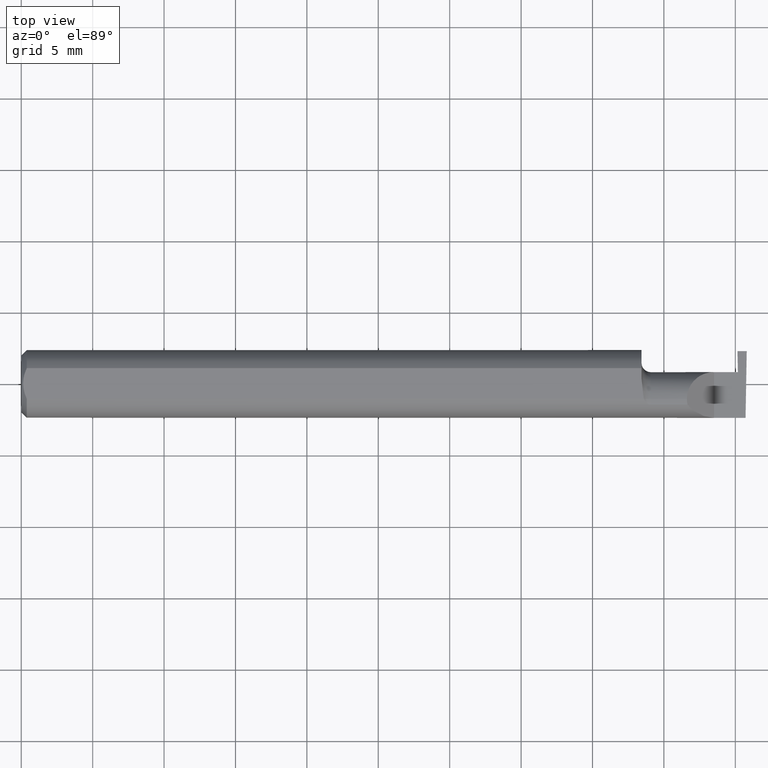
[diagram: clean part render]
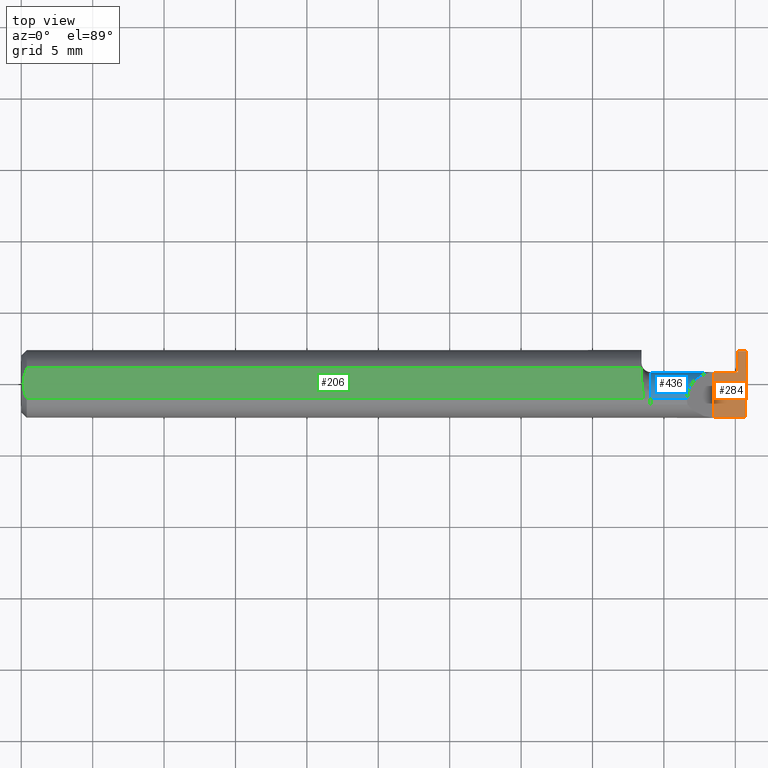
[diagram: same view with three faces highlighted in distinct colors, each labeled with its STEP entity id]
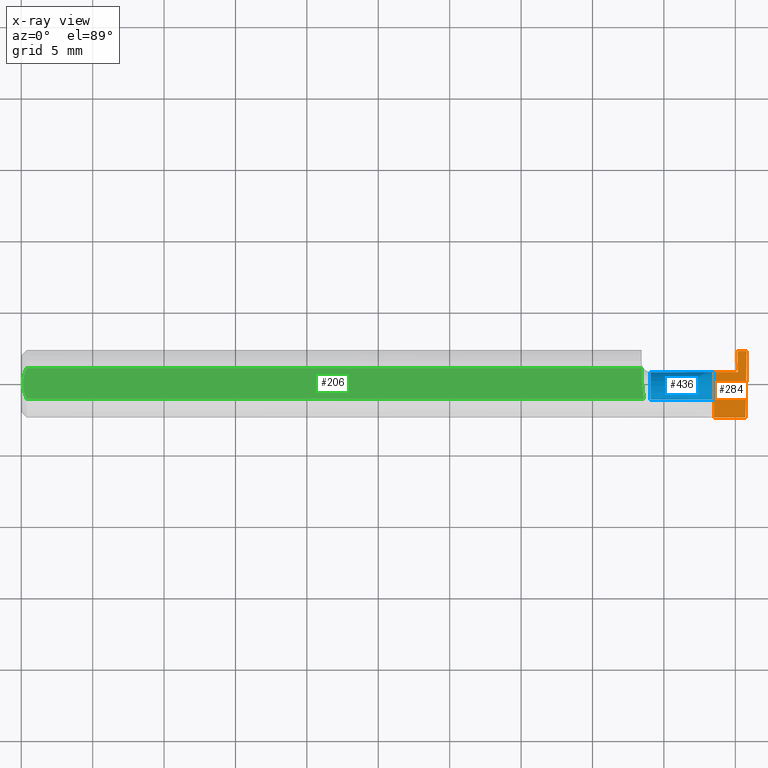
[diagram: x-ray of the same camera — body ghosted, the three highlighted faces saturated]
A machine part, top view with three faces highlighted in distinct colors.
The next image is the same camera in x-ray (body ghosted, the three faces saturated) — at least one of them is partly hidden behind the body in this view.
Their STEP definitions:

[orange] entity #284 — the highlighted planar face has unit normal (-0, 0, -1).
#10 = DIRECTION ( 'NONE',  ( -1.000000000000000000, -7.209802597311143795E-16, 1.224646799147358877E-16 ) ) ;
#12 = FACE_OUTER_BOUND ( 'NONE', #373, .T. ) ;
#66 = LINE ( 'NONE', #476, #742 ) ;
#67 = VERTEX_POINT ( 'NONE', #548 ) ;
#74 = AXIS2_PLACEMENT_3D ( 'NONE', #443, #676, #381 ) ;
#79 = CARTESIAN_POINT ( 'NONE',  ( 2.000000000000000000, 0.03240000000000002600, 1.169020725542458377E-32 ) ) ;
#100 = VERTEX_POINT ( 'NONE', #594 ) ;
#105 = EDGE_CURVE ( 'NONE', #100, #252, #66, .T. ) ;
#112 = LINE ( 'NONE', #365, #406 ) ;
#142 = DIRECTION ( 'NONE',  ( -1.000000000000000000, -0.000000000000000000, -0.000000000000000000 ) ) ;
#144 = EDGE_CURVE ( 'NONE', #100, #732, #112, .T. ) ;
#160 = VERTEX_POINT ( 'NONE', #562 ) ;
#184 = EDGE_CURVE ( 'NONE', #160, #678, #746, .T. ) ;
#188 = VECTOR ( 'NONE', #10, 39.37007874015748143 ) ;
#195 = PLANE ( 'NONE',  #74 ) ;
#200 = DIRECTION ( 'NONE',  ( 0.01744642479411314534, 0.9998477995484629233, -2.135106780035503491E-18 ) ) ;
#219 = CARTESIAN_POINT ( 'NONE',  ( 1.910000000000000142, 0.03240000000000002600, 1.102182119232621301E-17 ) ) ;
#220 = ORIENTED_EDGE ( 'NONE', *, *, #342, .F. ) ;
#230 = DIRECTION ( 'NONE',  ( 0.01742050049977392906, -0.9998482515673753346, -2.130797594924498551E-18 ) ) ;
#252 = VERTEX_POINT ( 'NONE', #505 ) ;
#257 = EDGE_CURVE ( 'NONE', #160, #732, #434, .T. ) ;
#284 = ADVANCED_FACE ( 'NONE', ( #12 ), #195, .F. ) ;
#322 = ORIENTED_EDGE ( 'NONE', *, *, #257, .T. ) ;
#326 = VERTEX_POINT ( 'NONE', #219 ) ;
#342 = EDGE_CURVE ( 'NONE', #678, #326, #691, .T. ) ;
#343 = CARTESIAN_POINT ( 'NONE',  ( 2.000000000000000444, 0.09040000000000000813, 6.269377719834979509E-17 ) ) ;
#344 = CARTESIAN_POINT ( 'NONE',  ( 1.910000000000000142, -0.1000000000000000056, 1.102182119232621301E-17 ) ) ;
#349 = EDGE_CURVE ( 'NONE', #326, #67, #457, .T. ) ;
#365 = CARTESIAN_POINT ( 'NONE',  ( 1.899999999999999911, 0.09040000000000000813, -3.918869757271545852E-19 ) ) ;
#373 = EDGE_LOOP ( 'NONE', ( #514, #322, #570, #461, #619, #735, #220 ) ) ;
#374 = CARTESIAN_POINT ( 'NONE',  ( 1.910000000000000142, -0.09359999999999998876, 1.102182119232621301E-17 ) ) ;
#378 = VECTOR ( 'NONE', #571, 39.37007874015748143 ) ;
#381 = DIRECTION ( 'NONE',  ( -1.000000000000000000, 0.000000000000000000, 1.224646799147358877E-16 ) ) ;
#406 = VECTOR ( 'NONE', #487, 39.37007874015748143 ) ;
#432 = VECTOR ( 'NONE', #142, 39.37007874015748143 ) ;
#434 = LINE ( 'NONE', #683, #626 ) ;
#443 = CARTESIAN_POINT ( 'NONE',  ( 2.000000000000000000, -0.1000000000000000056, 0.000000000000000000 ) ) ;
#457 = LINE ( 'NONE', #632, #781 ) ;
#461 = ORIENTED_EDGE ( 'NONE', *, *, #105, .T. ) ;
#467 = DIRECTION ( 'NONE',  ( 1.000000000000000000, 0.000000000000000000, 0.000000000000000000 ) ) ;
#476 = CARTESIAN_POINT ( 'NONE',  ( 1.977824098549211040, -0.1003863739339453109, 2.715764672991602673E-18 ) ) ;
#487 = DIRECTION ( 'NONE',  ( 1.000000000000000000, -0.000000000000000000, -0.000000000000000000 ) ) ;
#505 = CARTESIAN_POINT ( 'NONE',  ( 1.975510542377208578, 0.03240000000000000518, 1.857359675493197298E-17 ) ) ;
#514 = ORIENTED_EDGE ( 'NONE', *, *, #184, .F. ) ;
#548 = CARTESIAN_POINT ( 'NONE',  ( 1.974499999999999922, 0.03240000000000000518, 3.551471015152248519E-17 ) ) ;
#555 = CARTESIAN_POINT ( 'NONE',  ( 2.999519565323743132E-32, -0.09359999999999998876, 2.449293598294717754E-16 ) ) ;
#562 = CARTESIAN_POINT ( 'NONE',  ( 1.996789369178486373, -0.09359999999634724399, 1.965990811775635199E-19 ) ) ;
#570 = ORIENTED_EDGE ( 'NONE', *, *, #144, .F. ) ;
#571 = DIRECTION ( 'NONE',  ( -0.000000000000000000, 1.000000000000000000, -0.000000000000000000 ) ) ;
#594 = CARTESIAN_POINT ( 'NONE',  ( 1.974499999999999922, 0.09040000000000000813, -3.918869757271545852E-19 ) ) ;
#619 = ORIENTED_EDGE ( 'NONE', *, *, #659, .T. ) ;
#626 = VECTOR ( 'NONE', #200, 39.37007874015748143 ) ;
#632 = CARTESIAN_POINT ( 'NONE',  ( 1.709999999999999964, 0.03240000000000001906, 3.551475717527339856E-17 ) ) ;
#659 = EDGE_CURVE ( 'NONE', #252, #67, #668, .T. ) ;
#668 = LINE ( 'NONE', #79, #188 ) ;
#676 = DIRECTION ( 'NONE',  ( -1.224646799147358877E-16, 0.000000000000000000, -1.000000000000000000 ) ) ;
#678 = VERTEX_POINT ( 'NONE', #374 ) ;
#683 = CARTESIAN_POINT ( 'NONE',  ( 1.996678706298551376, -0.09994204647866641866, 4.067411700507134861E-19 ) ) ;
#691 = LINE ( 'NONE', #344, #378 ) ;
#732 = VERTEX_POINT ( 'NONE', #343 ) ;
#735 = ORIENTED_EDGE ( 'NONE', *, *, #349, .F. ) ;
#742 = VECTOR ( 'NONE', #230, 39.37007874015748143 ) ;
#746 = LINE ( 'NONE', #555, #432 ) ;
#781 = VECTOR ( 'NONE', #467, 39.37007874015748143 ) ;

[blue] entity #436 — the highlighted cylindrical surface (edge-blend (fillet) strip) has radius 1.905 mm, axis along (-1, -0, -0).
#5 = CARTESIAN_POINT ( 'NONE',  ( 1.835000000000000187, 0.001333982822017888053, 0.07499999999999998335 ) ) ;
#13 = AXIS2_PLACEMENT_3D ( 'NONE', #447, #321, #557 ) ;
#15 = VERTEX_POINT ( 'NONE', #157 ) ;
#33 = CARTESIAN_POINT ( 'NONE',  ( 1.978213402547462918, -0.04260000000000001286, -0.07499999999999999722 ) ) ;
#42 = DIRECTION ( 'NONE',  ( -1.000000000000000000, -0.000000000000000000, -0.000000000000000000 ) ) ;
#60 = ORIENTED_EDGE ( 'NONE', *, *, #697, .T. ) ;
#64 = CARTESIAN_POINT ( 'NONE',  ( 1.866066017177982594, 0.03240000000000000518, 0.04393398282201787380 ) ) ;
#67 = VERTEX_POINT ( 'NONE', #548 ) ;
#68 = DIRECTION ( 'NONE',  ( 0.000000000000000000, 0.000000000000000000, 1.000000000000000000 ) ) ;
#75 = CARTESIAN_POINT ( 'NONE',  ( 1.975027797685394937, 0.03157410243558826657, -0.01282266061343000085 ) ) ;
#78 = EDGE_CURVE ( 'NONE', #15, #326, #414, .T. ) ;
#92 = CARTESIAN_POINT ( 'NONE',  ( 1.734999999999999876, -0.04259999999999997122, -0.07500000000000001110 ) ) ;
#104 = LINE ( 'NONE', #268, #601 ) ;
#119 = CYLINDRICAL_SURFACE ( 'NONE', #666, 0.07499999999999999722 ) ;
#132 = CARTESIAN_POINT ( 'NONE',  ( 1.974499999999999922, 0.03239999167003507208, -3.534818988851040720E-05 ) ) ;
#140 = CARTESIAN_POINT ( 'NONE',  ( 1.734999999999999876, -0.04259999999999998510, 0.000000000000000000 ) ) ;
#157 = CARTESIAN_POINT ( 'NONE',  ( 1.835000000000000409, -0.04259999999999998510, 0.07499999999999999722 ) ) ;
#185 = EDGE_LOOP ( 'NONE', ( #491, #603, #458, #295, #347, #248, #60, #556 ) ) ;
#212 = EDGE_CURVE ( 'NONE', #298, #517, #541, .T. ) ;
#218 = LINE ( 'NONE', #629, #393 ) ;
#219 = CARTESIAN_POINT ( 'NONE',  ( 1.910000000000000142, 0.03240000000000002600, 1.102182119232621301E-17 ) ) ;
#221 = CIRCLE ( 'NONE', #456, 0.07499999999999999722 ) ;
#248 = ORIENTED_EDGE ( 'NONE', *, *, #349, .T. ) ;
#256 = VERTEX_POINT ( 'NONE', #386 ) ;
#264 = CARTESIAN_POINT ( 'NONE',  ( 1.975284083932824064, 0.02994487577554267102, -0.01903262984222200624 ) ) ;
#268 = CARTESIAN_POINT ( 'NONE',  ( 1.709999999999999964, -0.04259999999999997816, -0.07499999999999999722 ) ) ;
#295 = ORIENTED_EDGE ( 'NONE', *, *, #747, .F. ) ;
#298 = VERTEX_POINT ( 'NONE', #339 ) ;
#300 = EDGE_CURVE ( 'NONE', #256, #298, #383, .T. ) ;
#321 = DIRECTION ( 'NONE',  ( -1.000000000000000000, -0.000000000000000000, -0.000000000000000000 ) ) ;
#326 = VERTEX_POINT ( 'NONE', #219 ) ;
#327 = EDGE_CURVE ( 'NONE', #256, #772, #104, .T. ) ;
#339 = CARTESIAN_POINT ( 'NONE',  ( 1.975284083932824064, 0.02994487577554267102, -0.01903262984222200624 ) ) ;
#347 = ORIENTED_EDGE ( 'NONE', *, *, #78, .T. ) ;
#349 = EDGE_CURVE ( 'NONE', #326, #67, #457, .T. ) ;
#362 = CARTESIAN_POINT ( 'NONE',  ( 1.910000000000000142, 0.03240000000000002600, 1.102182119232621301E-17 ) ) ;
#383 =( BOUNDED_CURVE ( )  B_SPLINE_CURVE ( 3, ( #33, #765, #401, #703 ),
 .UNSPECIFIED., .F., .F. ) 
 B_SPLINE_CURVE_WITH_KNOTS ( ( 4, 4 ),
 ( 3.140983202202990654, 4.455205321888861647 ),
 .UNSPECIFIED. ) 
 CURVE ( )  GEOMETRIC_REPRESENTATION_ITEM ( )  RATIONAL_B_SPLINE_CURVE ( ( 1.000000000000000000, 0.8611734602017913076, 0.8611734602017913076, 1.000000000000000000 ) ) 
 REPRESENTATION_ITEM ( '' )  );
#386 = CARTESIAN_POINT ( 'NONE',  ( 1.978213402547462918, -0.04260000000000001286, -0.07499999999999999722 ) ) ;
#393 = VECTOR ( 'NONE', #42, 39.37007874015748143 ) ;
#394 = DIRECTION ( 'NONE',  ( -1.000000000000000000, -0.000000000000000000, -0.000000000000000000 ) ) ;
#401 = CARTESIAN_POINT ( 'NONE',  ( 1.977080687037212847, 0.02094495418688682720, -0.05333678008583642161 ) ) ;
#413 = FACE_OUTER_BOUND ( 'NONE', #185, .T. ) ;
#414 =( BOUNDED_CURVE ( )  B_SPLINE_CURVE ( 3, ( #417, #5, #64, #362 ),
 .UNSPECIFIED., .F., .T. ) 
 B_SPLINE_CURVE_WITH_KNOTS ( ( 4, 4 ),
 ( 0.000000000000000000, 1.570796326794896558 ),
 .UNSPECIFIED. ) 
 CURVE ( )  GEOMETRIC_REPRESENTATION_ITEM ( )  RATIONAL_B_SPLINE_CURVE ( ( 1.000000000000000000, 0.8047378541243649375, 0.8047378541243649375, 1.000000000000000000 ) ) 
 REPRESENTATION_ITEM ( '' )  );
#417 = CARTESIAN_POINT ( 'NONE',  ( 1.835000000000000409, -0.04259999999999998510, 0.07499999999999999722 ) ) ;
#429 = CARTESIAN_POINT ( 'NONE',  ( 1.974499999999999922, 0.03239999167003507208, -3.534818988851040720E-05 ) ) ;
#436 = ADVANCED_FACE ( 'NONE', ( #413 ), #119, .T. ) ;
#447 = CARTESIAN_POINT ( 'NONE',  ( 1.974499999999999922, -0.04259999999999998510, 0.000000000000000000 ) ) ;
#456 = AXIS2_PLACEMENT_3D ( 'NONE', #140, #504, #68 ) ;
#457 = LINE ( 'NONE', #632, #781 ) ;
#458 = ORIENTED_EDGE ( 'NONE', *, *, #628, .F. ) ;
#467 = DIRECTION ( 'NONE',  ( 1.000000000000000000, 0.000000000000000000, 0.000000000000000000 ) ) ;
#470 = CIRCLE ( 'NONE', #13, 0.07499999999999999722 ) ;
#491 = ORIENTED_EDGE ( 'NONE', *, *, #300, .F. ) ;
#504 = DIRECTION ( 'NONE',  ( -1.000000000000000000, -0.000000000000000000, -0.000000000000000000 ) ) ;
#517 = VERTEX_POINT ( 'NONE', #429 ) ;
#541 =( BOUNDED_CURVE ( )  B_SPLINE_CURVE ( 3, ( #264, #75, #618, #132 ),
 .UNSPECIFIED., .F., .T. ) 
 B_SPLINE_CURVE_WITH_KNOTS ( ( 4, 4 ),
 ( 4.455205321888865200, 4.711308219781928486 ),
 .UNSPECIFIED. ) 
 CURVE ( )  GEOMETRIC_REPRESENTATION_ITEM ( )  RATIONAL_B_SPLINE_CURVE ( ( 1.000000000000000000, 0.9945417399294781413, 0.9945417399294781413, 1.000000000000000000 ) ) 
 REPRESENTATION_ITEM ( '' )  );
#548 = CARTESIAN_POINT ( 'NONE',  ( 1.974499999999999922, 0.03240000000000000518, 3.551471015152248519E-17 ) ) ;
#556 = ORIENTED_EDGE ( 'NONE', *, *, #212, .F. ) ;
#557 = DIRECTION ( 'NONE',  ( 0.000000000000000000, 0.000000000000000000, 1.000000000000000000 ) ) ;
#578 = VERTEX_POINT ( 'NONE', #745 ) ;
#596 = DIRECTION ( 'NONE',  ( -1.000000000000000000, -0.000000000000000000, -0.000000000000000000 ) ) ;
#601 = VECTOR ( 'NONE', #394, 39.37007874015748143 ) ;
#603 = ORIENTED_EDGE ( 'NONE', *, *, #327, .T. ) ;
#618 = CARTESIAN_POINT ( 'NONE',  ( 1.974765001967077271, 0.03239696580267938802, -0.006455479666460840586 ) ) ;
#628 = EDGE_CURVE ( 'NONE', #578, #772, #221, .T. ) ;
#629 = CARTESIAN_POINT ( 'NONE',  ( 1.709999999999999964, -0.04259999999999998510, 0.07499999999999999722 ) ) ;
#632 = CARTESIAN_POINT ( 'NONE',  ( 1.709999999999999964, 0.03240000000000001906, 3.551475717527339856E-17 ) ) ;
#666 = AXIS2_PLACEMENT_3D ( 'NONE', #713, #596, #782 ) ;
#697 = EDGE_CURVE ( 'NONE', #67, #517, #470, .T. ) ;
#703 = CARTESIAN_POINT ( 'NONE',  ( 1.975284083932824064, 0.02994487577554267102, -0.01903262984222200624 ) ) ;
#713 = CARTESIAN_POINT ( 'NONE',  ( 1.709999999999999964, -0.04259999999999998510, 0.000000000000000000 ) ) ;
#745 = CARTESIAN_POINT ( 'NONE',  ( 1.734999999999999876, -0.04259999999999997816, 0.07500000000000001110 ) ) ;
#747 = EDGE_CURVE ( 'NONE', #15, #578, #218, .T. ) ;
#765 = CARTESIAN_POINT ( 'NONE',  ( 1.978214534726833840, -0.007134900077140356178, -0.07500000000000002498 ) ) ;
#772 = VERTEX_POINT ( 'NONE', #92 ) ;
#781 = VECTOR ( 'NONE', #467, 39.37007874015748143 ) ;
#782 = DIRECTION ( 'NONE',  ( 0.000000000000000000, 0.000000000000000000, 1.000000000000000000 ) ) ;

[green] entity #206 — the highlighted planar face has unit normal (0, -0, 1).
#4 = CARTESIAN_POINT ( 'NONE',  ( 0.004999999999999986226, 1.025183015402604432E-17, 0.08359999999999999376 ) ) ;
#16 = CARTESIAN_POINT ( 'NONE',  ( 0.009539353699420717939, -0.02875682547511376405, 0.08359999999999997988 ) ) ;
#28 = VECTOR ( 'NONE', #47, 39.37007874015748143 ) ;
#32 = EDGE_LOOP ( 'NONE', ( #90, #726, #121, #448, #704, #44 ) ) ;
#37 = EDGE_CURVE ( 'NONE', #721, #281, #199, .T. ) ;
#44 = ORIENTED_EDGE ( 'NONE', *, *, #679, .T. ) ;
#47 = DIRECTION ( 'NONE',  ( 1.000000000000000000, 0.000000000000000000, 0.000000000000000000 ) ) ;
#70 = CARTESIAN_POINT ( 'NONE',  ( 1.709999999999999964, 0.04209513035969834893, 0.08359999999999999376 ) ) ;
#84 = FACE_OUTER_BOUND ( 'NONE', #32, .T. ) ;
#90 = ORIENTED_EDGE ( 'NONE', *, *, #547, .T. ) ;
#109 = CARTESIAN_POINT ( 'NONE',  ( 0.004999999999999986226, 1.025183015402604432E-17, 0.08359999999999999376 ) ) ;
#113 = B_SPLINE_CURVE_WITH_KNOTS ( 'NONE', 3,
 ( #710, #653, #167, #226, #649, #109 ),
 .UNSPECIFIED., .F., .F.,
 ( 4, 2, 4 ),
 ( 0.001518921481343302573, 0.002066509374312902950, 0.002614097267282503544 ),
 .UNSPECIFIED. ) ;
#115 = EDGE_CURVE ( 'NONE', #260, #431, #113, .T. ) ;
#121 = ORIENTED_EDGE ( 'NONE', *, *, #760, .T. ) ;
#145 = CARTESIAN_POINT ( 'NONE',  ( 0.01499999999999999598, 0.04209513035969836975, 0.08359999999999999376 ) ) ;
#158 = DIRECTION ( 'NONE',  ( -0.000000000000000000, 1.000000000000000000, 0.000000000000000000 ) ) ;
#161 = VECTOR ( 'NONE', #158, 39.37007874015748143 ) ;
#167 = CARTESIAN_POINT ( 'NONE',  ( 0.009492654797564227878, 0.02859466010166631170, 0.08360000000000000764 ) ) ;
#176 = CARTESIAN_POINT ( 'NONE',  ( 1.711463898467977307, -0.005727447913487201774, 0.08359999999999997988 ) ) ;
#182 = CARTESIAN_POINT ( 'NONE',  ( 0.000000000000000000, -0.04209513035969836975, 0.08359999999999999376 ) ) ;
#189 = PLANE ( 'NONE',  #354 ) ;
#192 = DIRECTION ( 'NONE',  ( 0.000000000000000000, -0.000000000000000000, 1.000000000000000000 ) ) ;
#199 = B_SPLINE_CURVE_WITH_KNOTS ( 'NONE', 3,
 ( #335, #273, #370, #176, #725, #658 ),
 .UNSPECIFIED., .F., .F.,
 ( 4, 2, 4 ),
 ( 0.009672910729349542408, 0.01035804079918430792, 0.01104317086901907344 ),
 .UNSPECIFIED. ) ;
#204 = CARTESIAN_POINT ( 'NONE',  ( 1.716129652885479251, -0.04209513035970091632, 0.08359999999999999376 ) ) ;
#206 = ADVANCED_FACE ( 'NONE', ( #84 ), #189, .T. ) ;
#207 = LINE ( 'NONE', #271, #161 ) ;
#226 = CARTESIAN_POINT ( 'NONE',  ( 0.005981829149300634495, 0.01454044632356570055, 0.08359999999999997988 ) ) ;
#241 = LINE ( 'NONE', #182, #28 ) ;
#260 = VERTEX_POINT ( 'NONE', #145 ) ;
#270 = VERTEX_POINT ( 'NONE', #737 ) ;
#271 = CARTESIAN_POINT ( 'NONE',  ( 1.709999999999999964, -0.09360000000000003040, 0.08359999999999999376 ) ) ;
#273 = CARTESIAN_POINT ( 'NONE',  ( 1.716082007218903582, -0.03301619840524098320, 0.08359999999999997988 ) ) ;
#277 = VERTEX_POINT ( 'NONE', #70 ) ;
#281 = VERTEX_POINT ( 'NONE', #551 ) ;
#316 = CARTESIAN_POINT ( 'NONE',  ( 0.004999999999999977553, -0.007328888879231072045, 0.08359999999999997988 ) ) ;
#325 = CARTESIAN_POINT ( 'NONE',  ( 2.000000000000000000, -0.09360000000000003040, 0.08359999999999999376 ) ) ;
#335 = CARTESIAN_POINT ( 'NONE',  ( 1.716129652885479251, -0.04209513035970091632, 0.08359999999999999376 ) ) ;
#354 = AXIS2_PLACEMENT_3D ( 'NONE', #325, #192, #624 ) ;
#370 = CARTESIAN_POINT ( 'NONE',  ( 1.714570820222980574, -0.02392027542784302963, 0.08360000000000000764 ) ) ;
#385 = CARTESIAN_POINT ( 'NONE',  ( 0.01206089165507020187, -0.03555991978469316694, 0.08359999999999999376 ) ) ;
#407 = VECTOR ( 'NONE', #685, 39.37007874015748143 ) ;
#431 = VERTEX_POINT ( 'NONE', #4 ) ;
#442 = B_SPLINE_CURVE_WITH_KNOTS ( 'NONE', 3,
 ( #612, #316, #554, #16, #385, #739 ),
 .UNSPECIFIED., .F., .F.,
 ( 4, 2, 4 ),
 ( 0.002614097267282503544, 0.003163218599391118963, 0.003712339931499734381 ),
 .UNSPECIFIED. ) ;
#448 = ORIENTED_EDGE ( 'NONE', *, *, #585, .T. ) ;
#547 = EDGE_CURVE ( 'NONE', #270, #721, #241, .T. ) ;
#551 = CARTESIAN_POINT ( 'NONE',  ( 1.709999999999999742, 0.01227294415283364248, 0.08359999999999999376 ) ) ;
#554 = CARTESIAN_POINT ( 'NONE',  ( 0.005975039161239314132, -0.01453776427033151748, 0.08360000000000000764 ) ) ;
#585 = EDGE_CURVE ( 'NONE', #277, #260, #608, .T. ) ;
#608 = LINE ( 'NONE', #729, #407 ) ;
#612 = CARTESIAN_POINT ( 'NONE',  ( 0.004999999999999986226, 1.025183015402604432E-17, 0.08359999999999999376 ) ) ;
#624 = DIRECTION ( 'NONE',  ( 1.000000000000000000, 0.000000000000000000, -0.000000000000000000 ) ) ;
#649 = CARTESIAN_POINT ( 'NONE',  ( 0.004999999999999975818, 0.007308422719211830898, 0.08359999999999999376 ) ) ;
#653 = CARTESIAN_POINT ( 'NONE',  ( 0.01203648650249644972, 0.03550565407121128447, 0.08359999999999997988 ) ) ;
#658 = CARTESIAN_POINT ( 'NONE',  ( 1.709999999999999742, 0.01227294415283364248, 0.08359999999999999376 ) ) ;
#679 = EDGE_CURVE ( 'NONE', #431, #270, #442, .T. ) ;
#685 = DIRECTION ( 'NONE',  ( -1.000000000000000000, -0.000000000000000000, -0.000000000000000000 ) ) ;
#704 = ORIENTED_EDGE ( 'NONE', *, *, #115, .T. ) ;
#710 = CARTESIAN_POINT ( 'NONE',  ( 0.01499999999999999598, 0.04209513035969836975, 0.08359999999999999376 ) ) ;
#721 = VERTEX_POINT ( 'NONE', #204 ) ;
#725 = CARTESIAN_POINT ( 'NONE',  ( 1.709999999999999964, 0.003280657920457313859, 0.08359999999999999376 ) ) ;
#726 = ORIENTED_EDGE ( 'NONE', *, *, #37, .T. ) ;
#729 = CARTESIAN_POINT ( 'NONE',  ( 0.000000000000000000, 0.04209513035969836975, 0.08359999999999999376 ) ) ;
#737 = CARTESIAN_POINT ( 'NONE',  ( 0.01499999999999999944, -0.04209513035969836975, 0.08359999999999999376 ) ) ;
#739 = CARTESIAN_POINT ( 'NONE',  ( 0.01499999999999999944, -0.04209513035969836975, 0.08359999999999999376 ) ) ;
#760 = EDGE_CURVE ( 'NONE', #281, #277, #207, .T. ) ;